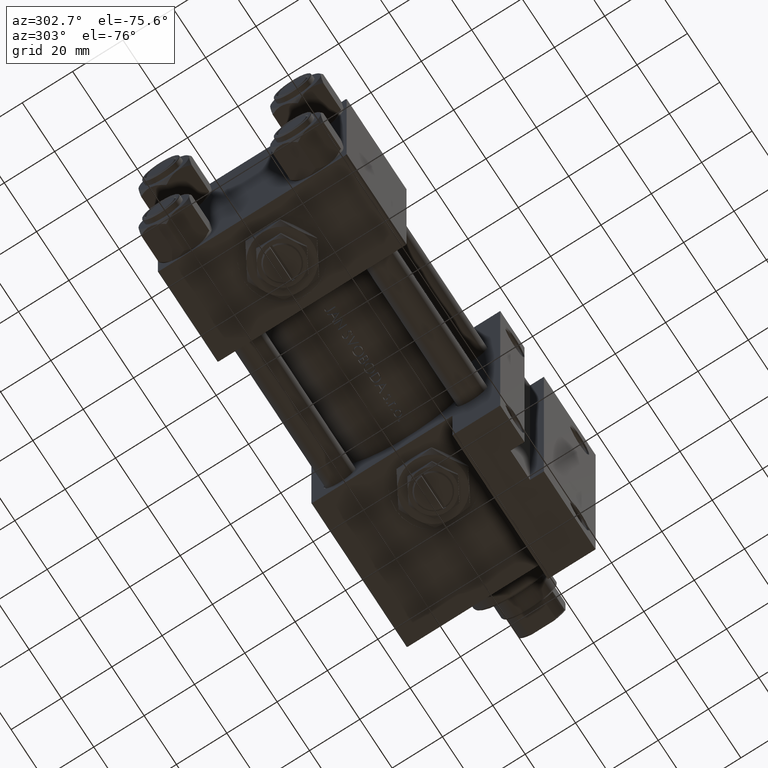
[diagram: clean part render]
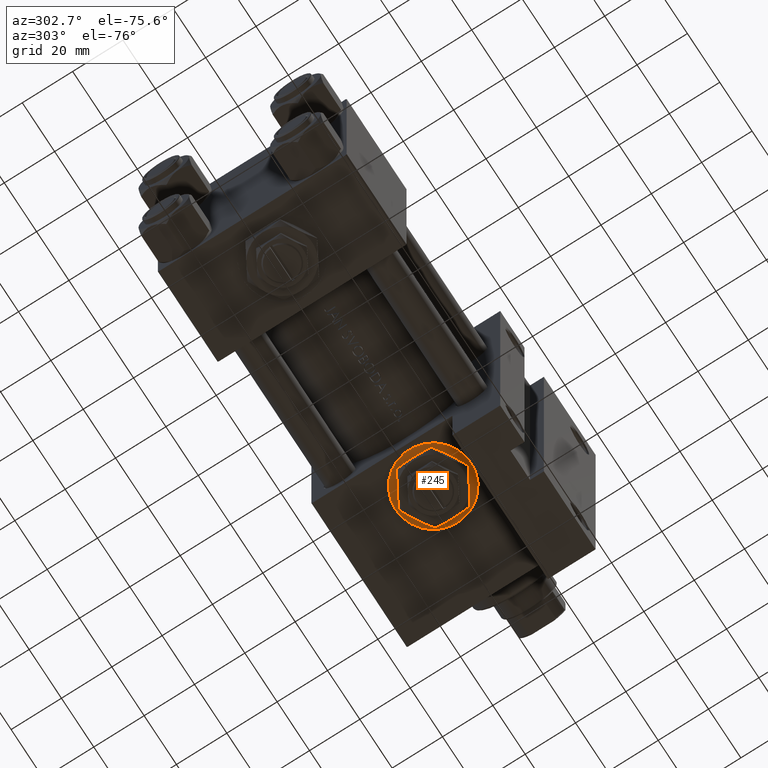
[diagram: same view with one face highlighted and labeled with its STEP entity id]
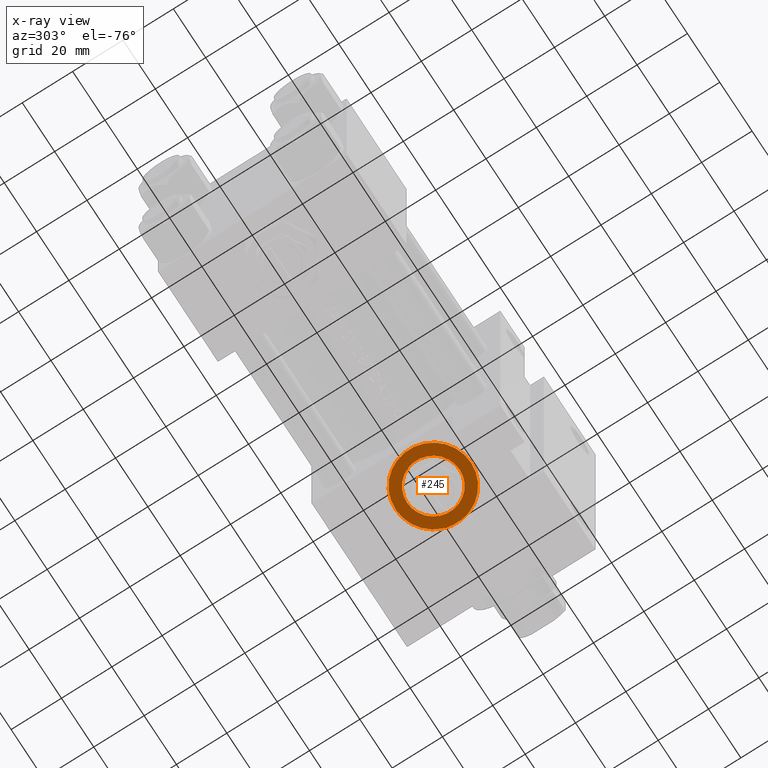
[diagram: x-ray of the same camera — body ghosted, the highlighted face saturated]
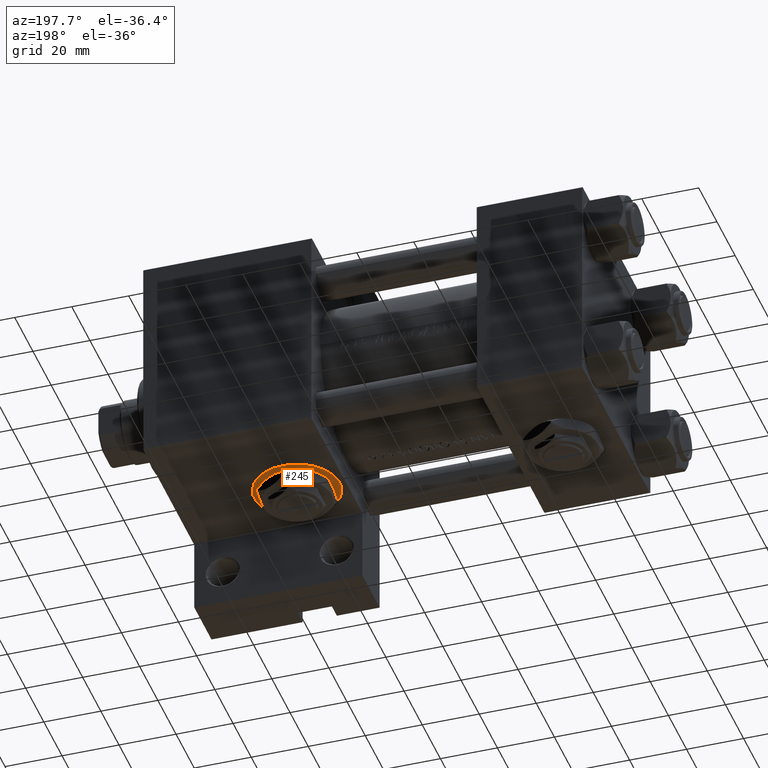
[diagram: same view with one face highlighted and labeled with its STEP entity id]
A machine part, auxiliary view. The second image highlights one B-rep face of the part: STEP entity #245.
The next image is the same camera in x-ray: the body ghosted, the highlighted face saturated — about 0% of this face is hidden behind the body in this view.
A second angle (auxiliary view) of the same face is appended — the face is thin or edge-on in the first view.
In plain terms, the highlighted planar face has unit normal (0, 0, -1).
Its self-contained STEP definition (entity closure, byte-faithful):
#157 = FACE_BOUND ( 'NONE', #25108, .T. ) ;
#245 = ADVANCED_FACE ( 'NONE', ( #157, #26560 ), #41366, .T. ) ;
#2182 = CIRCLE ( 'NONE', #38306, 10.48000000000000043 ) ;
#3414 = CARTESIAN_POINT ( 'NONE',  ( 112.0000000000000000, 37.30000000000000426, 0.000000000000000000 ) ) ;
#4236 = EDGE_CURVE ( 'NONE', #46623, #44958, #2182, .T. ) ;
#4447 = AXIS2_PLACEMENT_3D ( 'NONE', #30577, #45892, #6969 ) ;
#6969 = DIRECTION ( 'NONE',  ( 0.000000000000000000, -0.000000000000000000, 1.000000000000000000 ) ) ;
#7188 = DIRECTION ( 'NONE',  ( 0.000000000000000000, 1.000000000000000000, 0.000000000000000000 ) ) ;
#7815 = ORIENTED_EDGE ( 'NONE', *, *, #4236, .F. ) ;
#7930 = CARTESIAN_POINT ( 'NONE',  ( 112.0000000000000000, 37.30000000000000426, 10.48000000000000043 ) ) ;
#9121 = CARTESIAN_POINT ( 'NONE',  ( 112.0000000000000000, 37.29999999999999716, -15.00000000000001243 ) ) ;
#9167 = VERTEX_POINT ( 'NONE', #9121 ) ;
#10464 = DIRECTION ( 'NONE',  ( 0.000000000000000000, 1.000000000000000000, 0.000000000000000000 ) ) ;
#13303 = DIRECTION ( 'NONE',  ( 0.000000000000000000, 0.000000000000000000, 1.000000000000000000 ) ) ;
#13729 = EDGE_LOOP ( 'NONE', ( #15614, #31140 ) ) ;
#15614 = ORIENTED_EDGE ( 'NONE', *, *, #47221, .T. ) ;
#17984 = AXIS2_PLACEMENT_3D ( 'NONE', #3414, #10464, #26292 ) ;
#18425 = ORIENTED_EDGE ( 'NONE', *, *, #33905, .F. ) ;
#18780 = CIRCLE ( 'NONE', #25193, 15.00000000000001243 ) ;
#19096 = AXIS2_PLACEMENT_3D ( 'NONE', #36404, #20340, #28377 ) ;
#20340 = DIRECTION ( 'NONE',  ( 0.000000000000000000, 1.000000000000000000, 0.000000000000000000 ) ) ;
#25108 = EDGE_LOOP ( 'NONE', ( #18425, #7815 ) ) ;
#25193 = AXIS2_PLACEMENT_3D ( 'NONE', #30311, #7188, #13303 ) ;
#25996 = CARTESIAN_POINT ( 'NONE',  ( 112.0000000000000000, 37.29999999999999716, 15.00000000000001243 ) ) ;
#26292 = DIRECTION ( 'NONE',  ( 0.000000000000000000, 0.000000000000000000, 1.000000000000000000 ) ) ;
#26480 = CARTESIAN_POINT ( 'NONE',  ( 112.0000000000000000, 37.30000000000000426, -10.48000000000000043 ) ) ;
#26560 = FACE_OUTER_BOUND ( 'NONE', #13729, .T. ) ;
#28377 = DIRECTION ( 'NONE',  ( 0.000000000000000000, 0.000000000000000000, 1.000000000000000000 ) ) ;
#28642 = CARTESIAN_POINT ( 'NONE',  ( 112.0000000000000000, 37.30000000000000426, 0.000000000000000000 ) ) ;
#30311 = CARTESIAN_POINT ( 'NONE',  ( 112.0000000000000000, 37.29999999999999716, 0.000000000000000000 ) ) ;
#30577 = CARTESIAN_POINT ( 'NONE',  ( 112.0000000000000000, 37.29999999999999716, 0.000000000000000000 ) ) ;
#31140 = ORIENTED_EDGE ( 'NONE', *, *, #33836, .T. ) ;
#32165 = DIRECTION ( 'NONE',  ( 0.000000000000000000, 1.000000000000000000, 0.000000000000000000 ) ) ;
#33836 = EDGE_CURVE ( 'NONE', #9167, #45227, #18780, .T. ) ;
#33905 = EDGE_CURVE ( 'NONE', #44958, #46623, #38811, .T. ) ;
#36404 = CARTESIAN_POINT ( 'NONE',  ( 112.0000000000000000, 37.29999999999999716, 0.000000000000000000 ) ) ;
#38306 = AXIS2_PLACEMENT_3D ( 'NONE', #28642, #32165, #40181 ) ;
#38811 = CIRCLE ( 'NONE', #17984, 10.48000000000000043 ) ;
#40181 = DIRECTION ( 'NONE',  ( 0.000000000000000000, 0.000000000000000000, 1.000000000000000000 ) ) ;
#40735 = CIRCLE ( 'NONE', #19096, 15.00000000000001243 ) ;
#41366 = PLANE ( 'NONE',  #4447 ) ;
#44958 = VERTEX_POINT ( 'NONE', #7930 ) ;
#45227 = VERTEX_POINT ( 'NONE', #25996 ) ;
#45892 = DIRECTION ( 'NONE',  ( 0.000000000000000000, 1.000000000000000000, 0.000000000000000000 ) ) ;
#46623 = VERTEX_POINT ( 'NONE', #26480 ) ;
#47221 = EDGE_CURVE ( 'NONE', #45227, #9167, #40735, .T. ) ;